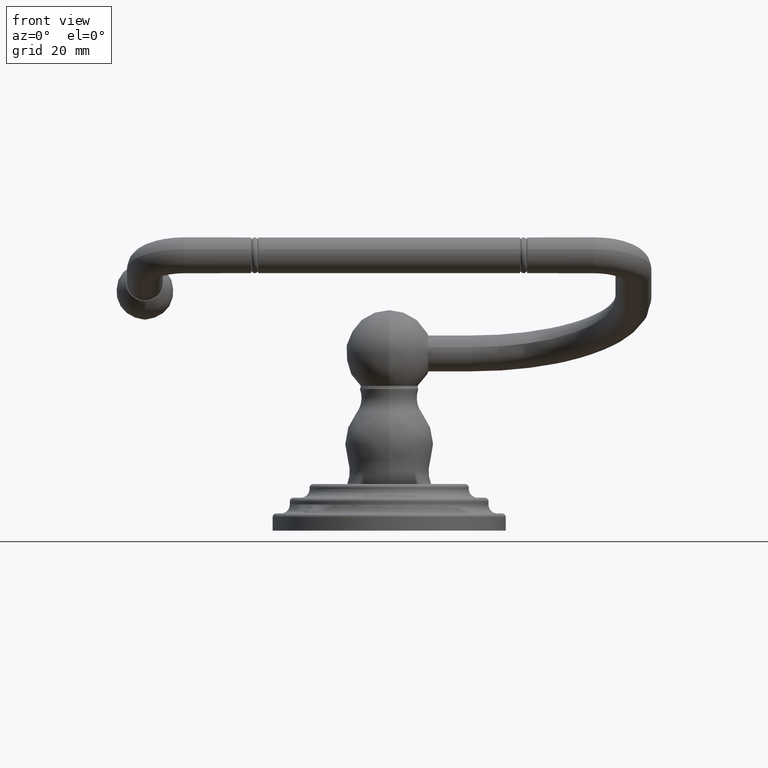
[diagram: clean part render]
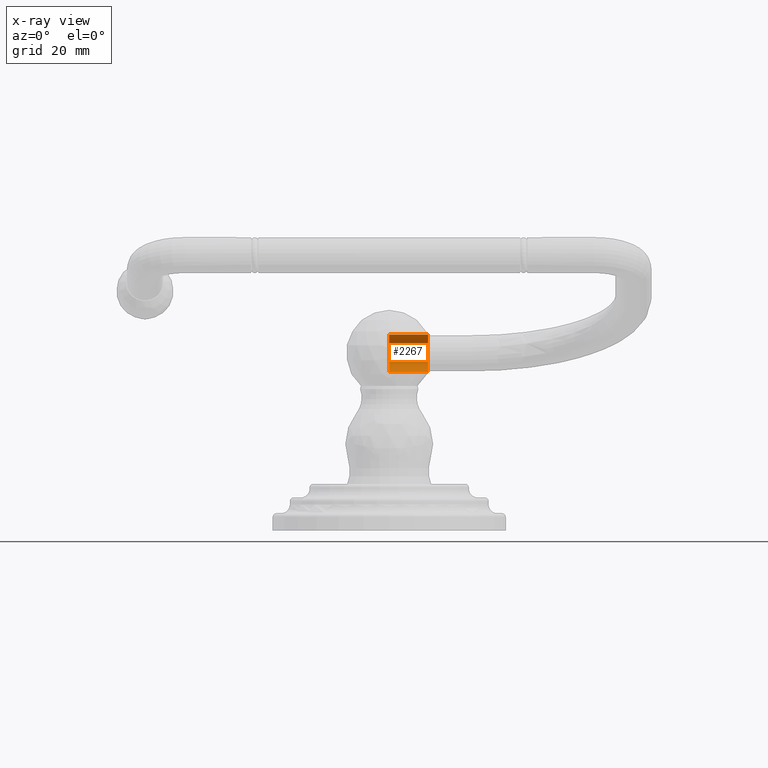
[diagram: x-ray — body ghosted, one internal face saturated and labeled with its STEP entity id]
A machine part, front view, then the same camera in x-ray: the body is ghosted and one INTERNAL B-rep face — a face not visible from any outside direction — is saturated and labeled: STEP entity #2267.
In plain terms, the highlighted cylindrical surface (edge-blend (fillet) strip) has radius 5.2451 mm, axis along (-1, 0, 0).
Its self-contained STEP definition (entity closure, byte-faithful):
#590=CARTESIAN_POINT('',(4.277648302514E-1,0.E0,1.947E0));
#591=DIRECTION('',(-1.E0,0.E0,0.E0));
#592=DIRECTION('',(0.E0,0.E0,1.E0));
#593=AXIS2_PLACEMENT_3D('',#590,#591,#592);
#630=DIRECTION('',(1.E0,0.E0,0.E0));
#631=VECTOR('',#630,4.277648302514E-1);
#632=CARTESIAN_POINT('',(0.E0,0.E0,2.1535E0));
#633=LINE('',#632,#631);
#637=DIRECTION('',(1.E0,0.E0,0.E0));
#638=VECTOR('',#637,4.277648302514E-1);
#639=CARTESIAN_POINT('',(0.E0,0.E0,1.7405E0));
#640=LINE('',#639,#638);
#644=CARTESIAN_POINT('',(0.E0,0.E0,1.947E0));
#645=DIRECTION('',(-1.E0,0.E0,0.E0));
#646=DIRECTION('',(0.E0,0.E0,1.E0));
#647=AXIS2_PLACEMENT_3D('',#644,#645,#646);
#1429=CARTESIAN_POINT('',(0.E0,0.E0,2.1535E0));
#1430=CARTESIAN_POINT('',(0.E0,0.E0,1.7405E0));
#1431=VERTEX_POINT('',#1429);
#1432=VERTEX_POINT('',#1430);
#1433=CARTESIAN_POINT('',(4.277648302514E-1,0.E0,2.1535E0));
#1434=VERTEX_POINT('',#1433);
#1435=CARTESIAN_POINT('',(4.277648302514E-1,0.E0,1.7405E0));
#1436=VERTEX_POINT('',#1435);
#2253=CARTESIAN_POINT('',(0.E0,0.E0,1.947E0));
#2254=DIRECTION('',(-1.E0,0.E0,0.E0));
#2255=DIRECTION('',(0.E0,0.E0,1.E0));
#2256=AXIS2_PLACEMENT_3D('',#2253,#2254,#2255);
#2257=CYLINDRICAL_SURFACE('',#2256,2.065E-1);
#2259=ORIENTED_EDGE('',*,*,#2258,.T.);
#2260=ORIENTED_EDGE('',*,*,#2221,.T.);
#2262=ORIENTED_EDGE('',*,*,#2261,.F.);
#2264=ORIENTED_EDGE('',*,*,#2263,.F.);
#2265=EDGE_LOOP('',(#2259,#2260,#2262,#2264));
#2266=FACE_OUTER_BOUND('',#2265,.F.);
#594=CIRCLE('',#593,2.065E-1);
#648=CIRCLE('',#647,2.065E-1);
#2221=EDGE_CURVE('',#1434,#1436,#594,.T.);
#2258=EDGE_CURVE('',#1431,#1434,#633,.T.);
#2261=EDGE_CURVE('',#1432,#1436,#640,.T.);
#2263=EDGE_CURVE('',#1431,#1432,#648,.T.);
#2267=ADVANCED_FACE('',(#2266),#2257,.F.);